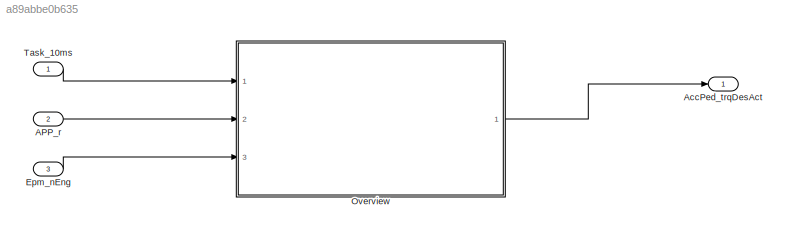
MODEL slx_a89abbe0b635
KIND model
CONFIG AbsTol = auto
CONFIG EnableMultiTasking = off
CONFIG FixedStep = auto
CONFIG MaxStep = auto
CONFIG MinStep = auto
CONFIG RelTol = 1e-3
CONFIG SampleTimeConstraint = Unconstrained
CONFIG SolverName = VariableStepAuto
CONFIG StartTime = 0.0
CONFIG StopTime = 10.0
BLOCK [Inport] APP_r
  Port = 2
BLOCK [Outport] AccPed_trqDesAct
BLOCK [Inport] Epm_nEng
  Port = 3
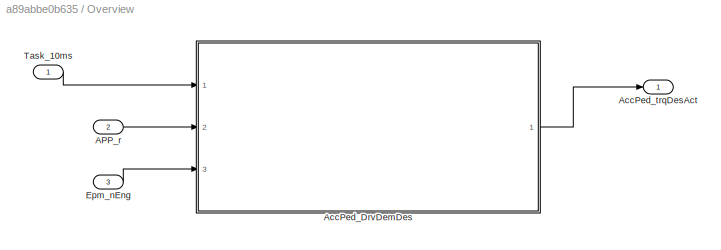
BLOCK [SubSystem] Overview
  Ports = [3, 1]
  RequestExecContextInheritance = off
BLOCK [Inport] Overview/APP_r
  Port = 2
BLOCK [ModelReference] Overview/AccPed_DrvDemDes
  ModelNameDialog = AccPed_DrvDemDes
  ModelReferenceVersion = 1.57
  Ports = [3, 1]
  ScheduleRates = on
BLOCK [Outport] Overview/AccPed_trqDesAct
BLOCK [Inport] Overview/Epm_nEng
  Port = 3
BLOCK [Inport] Overview/Task_10ms
BLOCK [Inport] Task_10ms
  OutputFunctionCall = on
LINE APP_r:1 -> Overview:2
LINE Epm_nEng:1 -> Overview:3
LINE Overview/APP_r:1 -> Overview/AccPed_DrvDemDes:2
LINE Overview/AccPed_DrvDemDes:1 -> Overview/AccPed_trqDesAct:1
LINE Overview/Epm_nEng:1 -> Overview/AccPed_DrvDemDes:3
LINE Overview/Task_10ms:1 -> Overview/AccPed_DrvDemDes:1
LINE Overview:1 -> AccPed_trqDesAct:1
LINE Task_10ms:1 -> Overview:1
